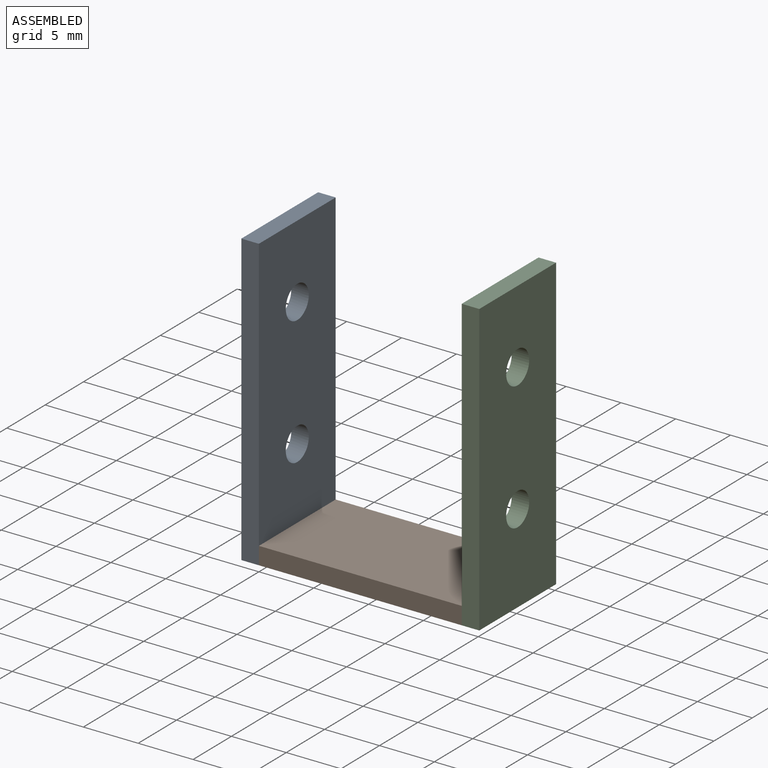
[diagram: assembled view]
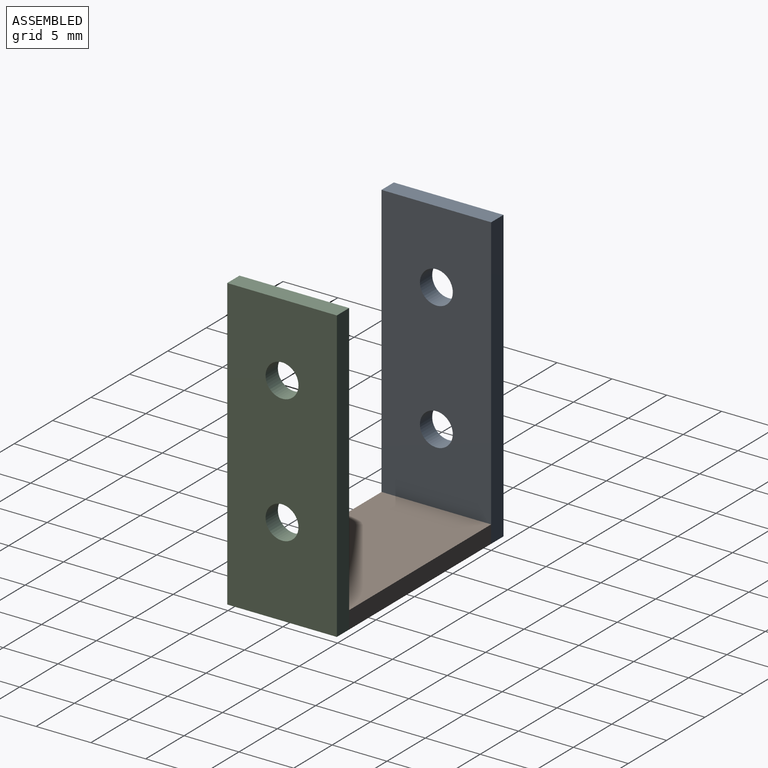
[diagram: assembled view, second angle]
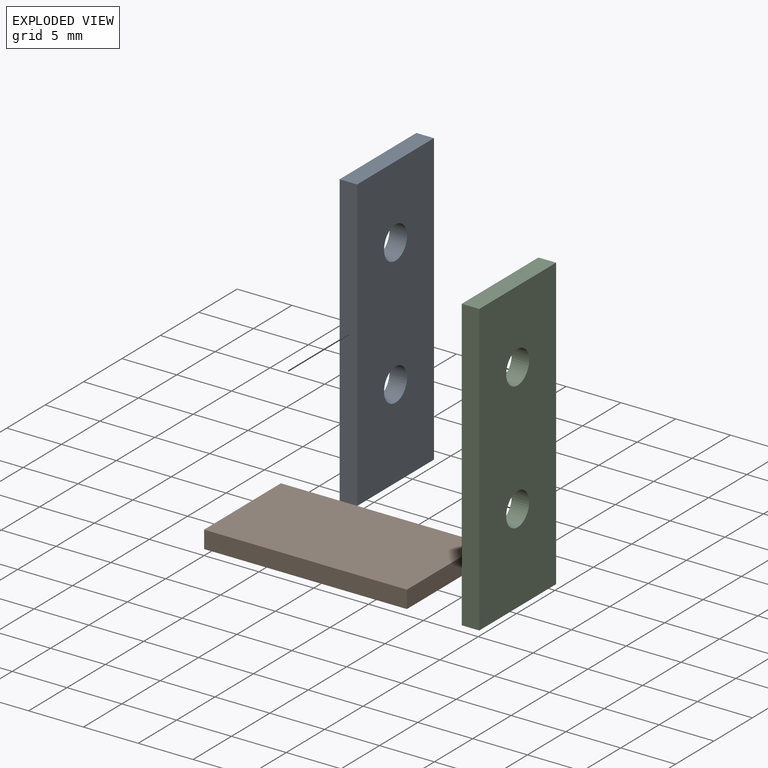
[diagram: exploded view]
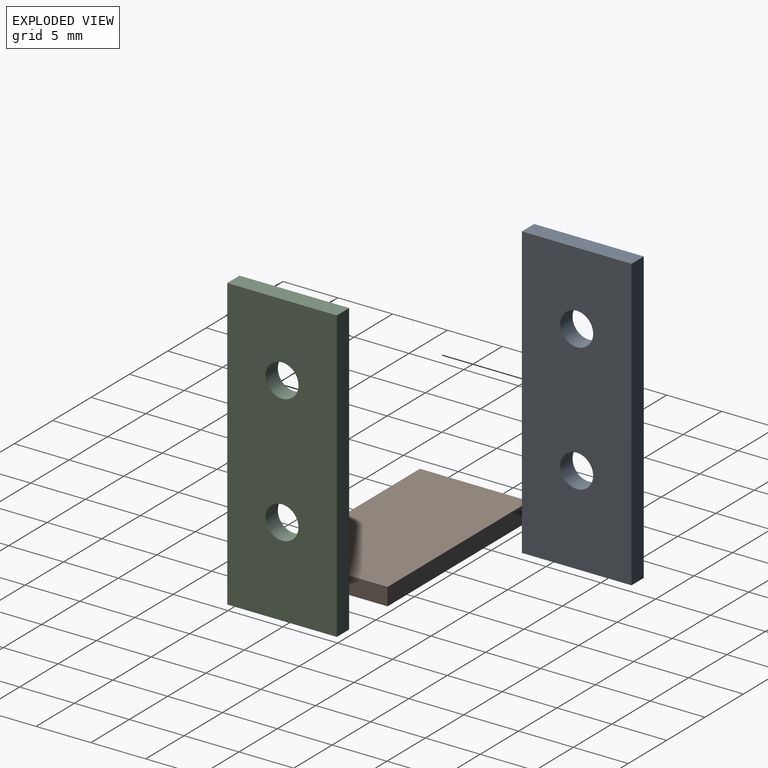
[diagram: exploded view, second angle]
ASSEMBLY  parts=3 mates=2
PART A: 8 faces, bbox 1.6x10x26.5 mm
  f0: plane 26.5x10mm, normal (-1,0,0), area 250.9mm2, adj f1,f3,f4,f5,f6,f7
  f1: plane 26.5x1.6mm, normal (0,-1,0), area 42.4mm2, adj f0,f2,f4,f5
  f2: plane 26.5x10mm, normal (1,0,0), area 250.9mm2, adj f1,f3,f4,f5,f6,f7
  f3: plane 26.5x1.6mm, normal (0,1,0), area 42.4mm2, adj f0,f2,f4,f5
  f4: plane 10x1.6mm, normal (0,0,1), area 16mm2, adj f0,f1,f2,f3
  f5: plane 10x1.6mm, normal (0,0,-1), area 16mm2, adj f0,f1,f2,f3
  f6: cylinder r=1.5mm len=3mm, axis (-1,0,0), area 15.1mm2, adj f0,f2
  f7: cylinder r=1.5mm len=3mm, axis (-1,0,0), area 15.1mm2, adj f0,f2
PART B: 6 faces, bbox 18.5x10x1.6 mm
  f0: plane 10x1.6mm, normal (1,0,0), area 16mm2, adj f1,f3,f4,f5
  f1: plane 18.5x1.6mm, normal (0,1,0), area 29.6mm2, adj f0,f2,f4,f5
  f2: plane 10x1.6mm, normal (-1,0,0), area 16mm2, adj f1,f3,f4,f5
  f3: plane 18.5x1.6mm, normal (0,-1,0), area 29.6mm2, adj f0,f2,f4,f5
  f4: plane 18.5x10mm, normal (0,0,1), area 185mm2, adj f0,f1,f2,f3
  f5: plane 18.5x10mm, normal (0,0,-1), area 185mm2, adj f0,f1,f2,f3
PART C: 8 faces, bbox 1.6x10x26.5 mm
  f0: plane 26.5x1.6mm, normal (0,-1,0), area 42.4mm2, adj f1,f3,f4,f5
  f1: plane 26.5x10mm, normal (1,0,0), area 250.9mm2, adj f0,f2,f4,f5,f6,f7
  f2: plane 26.5x1.6mm, normal (0,1,0), area 42.4mm2, adj f1,f3,f4,f5
  f3: plane 26.5x10mm, normal (-1,0,0), area 250.9mm2, adj f0,f2,f4,f5,f6,f7
  f4: plane 10x1.6mm, normal (0,0,1), area 16mm2, adj f0,f1,f2,f3
  f5: plane 10x1.6mm, normal (0,0,-1), area 16mm2, adj f0,f1,f2,f3
  f6: cylinder r=1.5mm len=3mm, axis (-1,0,0), area 15.1mm2, adj f1,f3
  f7: cylinder r=1.5mm len=3mm, axis (-1,0,0), area 15.1mm2, adj f1,f3
PLACE A at identity
PLACE B at identity fixed
PLACE C at identity
MATE fastened B.f5 <-> A.f5  axis (0,0,1) through (0,-10,0)mm
MATE fastened C.f0 <-> B.f3  axis (0,-1,0) through (18.5,-10,0)mm
